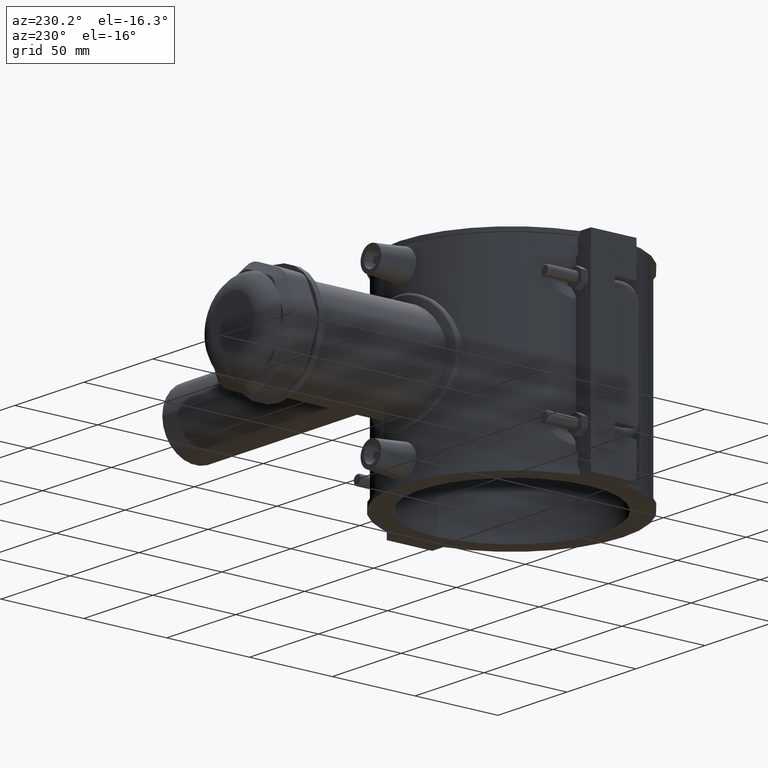
[diagram: clean part render]
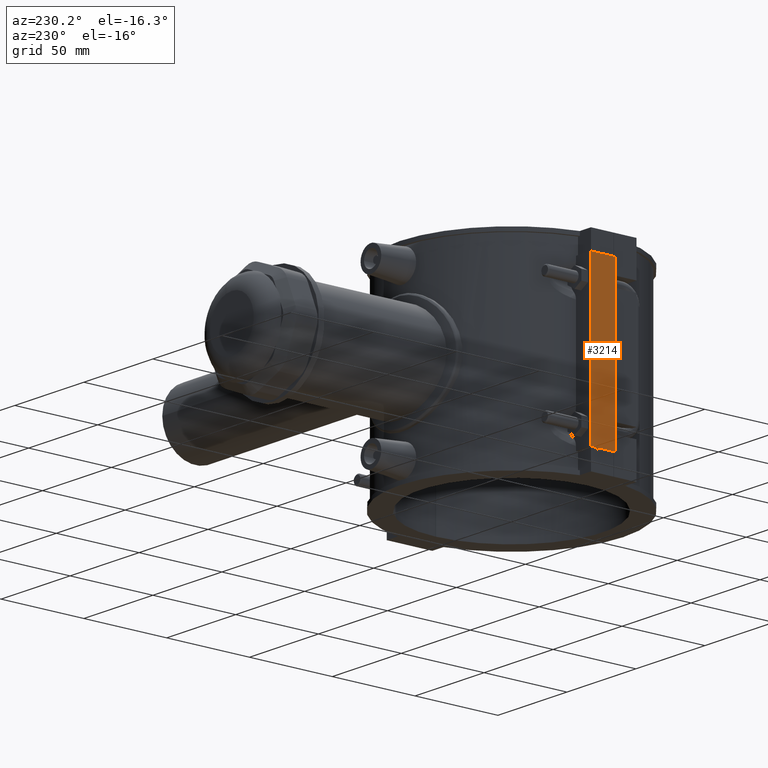
[diagram: same view with one face highlighted and labeled with its STEP entity id]
A machine part, auxiliary view. The second image highlights one B-rep face of the part: STEP entity #3214.
In plain terms, the highlighted planar face has unit normal (1, 0, 0).
Its self-contained STEP definition (entity closure, byte-faithful):
#154=LINE('',#5765,#441);
#157=LINE('',#5771,#444);
#160=LINE('',#5776,#447);
#173=LINE('',#5836,#460);
#441=VECTOR('',#3999,14.7000000000003);
#444=VECTOR('',#4004,14.7000000000003);
#447=VECTOR('',#4009,94.4);
#460=VECTOR('',#4028,94.4);
#653=PLANE('',#3464);
#964=FACE_OUTER_BOUND('',#1169,.T.);
#1169=EDGE_LOOP('',(#2545,#2546,#2547,#2548));
#1534=VERTEX_POINT('',#5762);
#1535=VERTEX_POINT('',#5764);
#1536=VERTEX_POINT('',#5768);
#1537=VERTEX_POINT('',#5770);
#1901=EDGE_CURVE('',#1535,#1534,#154,.T.);
#1904=EDGE_CURVE('',#1537,#1536,#157,.T.);
#1907=EDGE_CURVE('',#1535,#1536,#160,.T.);
#1926=EDGE_CURVE('',#1534,#1537,#173,.T.);
#2545=ORIENTED_EDGE('',*,*,#1907,.F.);
#2546=ORIENTED_EDGE('',*,*,#1901,.T.);
#2547=ORIENTED_EDGE('',*,*,#1926,.T.);
#2548=ORIENTED_EDGE('',*,*,#1904,.T.);
#3214=ADVANCED_FACE('',(#964),#653,.F.);
#3464=AXIS2_PLACEMENT_3D('',#5835,#4026,#4027);
#3999=DIRECTION('',(0.,-1.,0.));
#4004=DIRECTION('',(0.,1.,0.));
#4009=DIRECTION('',(0.,0.,1.));
#4026=DIRECTION('center_axis',(1.,0.,0.));
#4027=DIRECTION('ref_axis',(0.,1.,0.));
#4028=DIRECTION('',(0.,0.,1.));
#5762=CARTESIAN_POINT('',(-75.,0.0499999999999989,-47.2));
#5764=CARTESIAN_POINT('',(-75.,14.7500000000003,-47.2));
#5765=CARTESIAN_POINT('',(-75.,0.0499999999999989,-47.2));
#5768=CARTESIAN_POINT('',(-75.,14.7500000000003,47.2));
#5770=CARTESIAN_POINT('',(-75.,0.0499999999999989,47.2));
#5771=CARTESIAN_POINT('',(-75.,0.0499999999999989,47.2));
#5776=CARTESIAN_POINT('',(-75.,14.7500000000003,0.));
#5835=CARTESIAN_POINT('Origin',(-75.,0.0499999999999991,0.));
#5836=CARTESIAN_POINT('',(-75.,0.0499999999999991,0.));